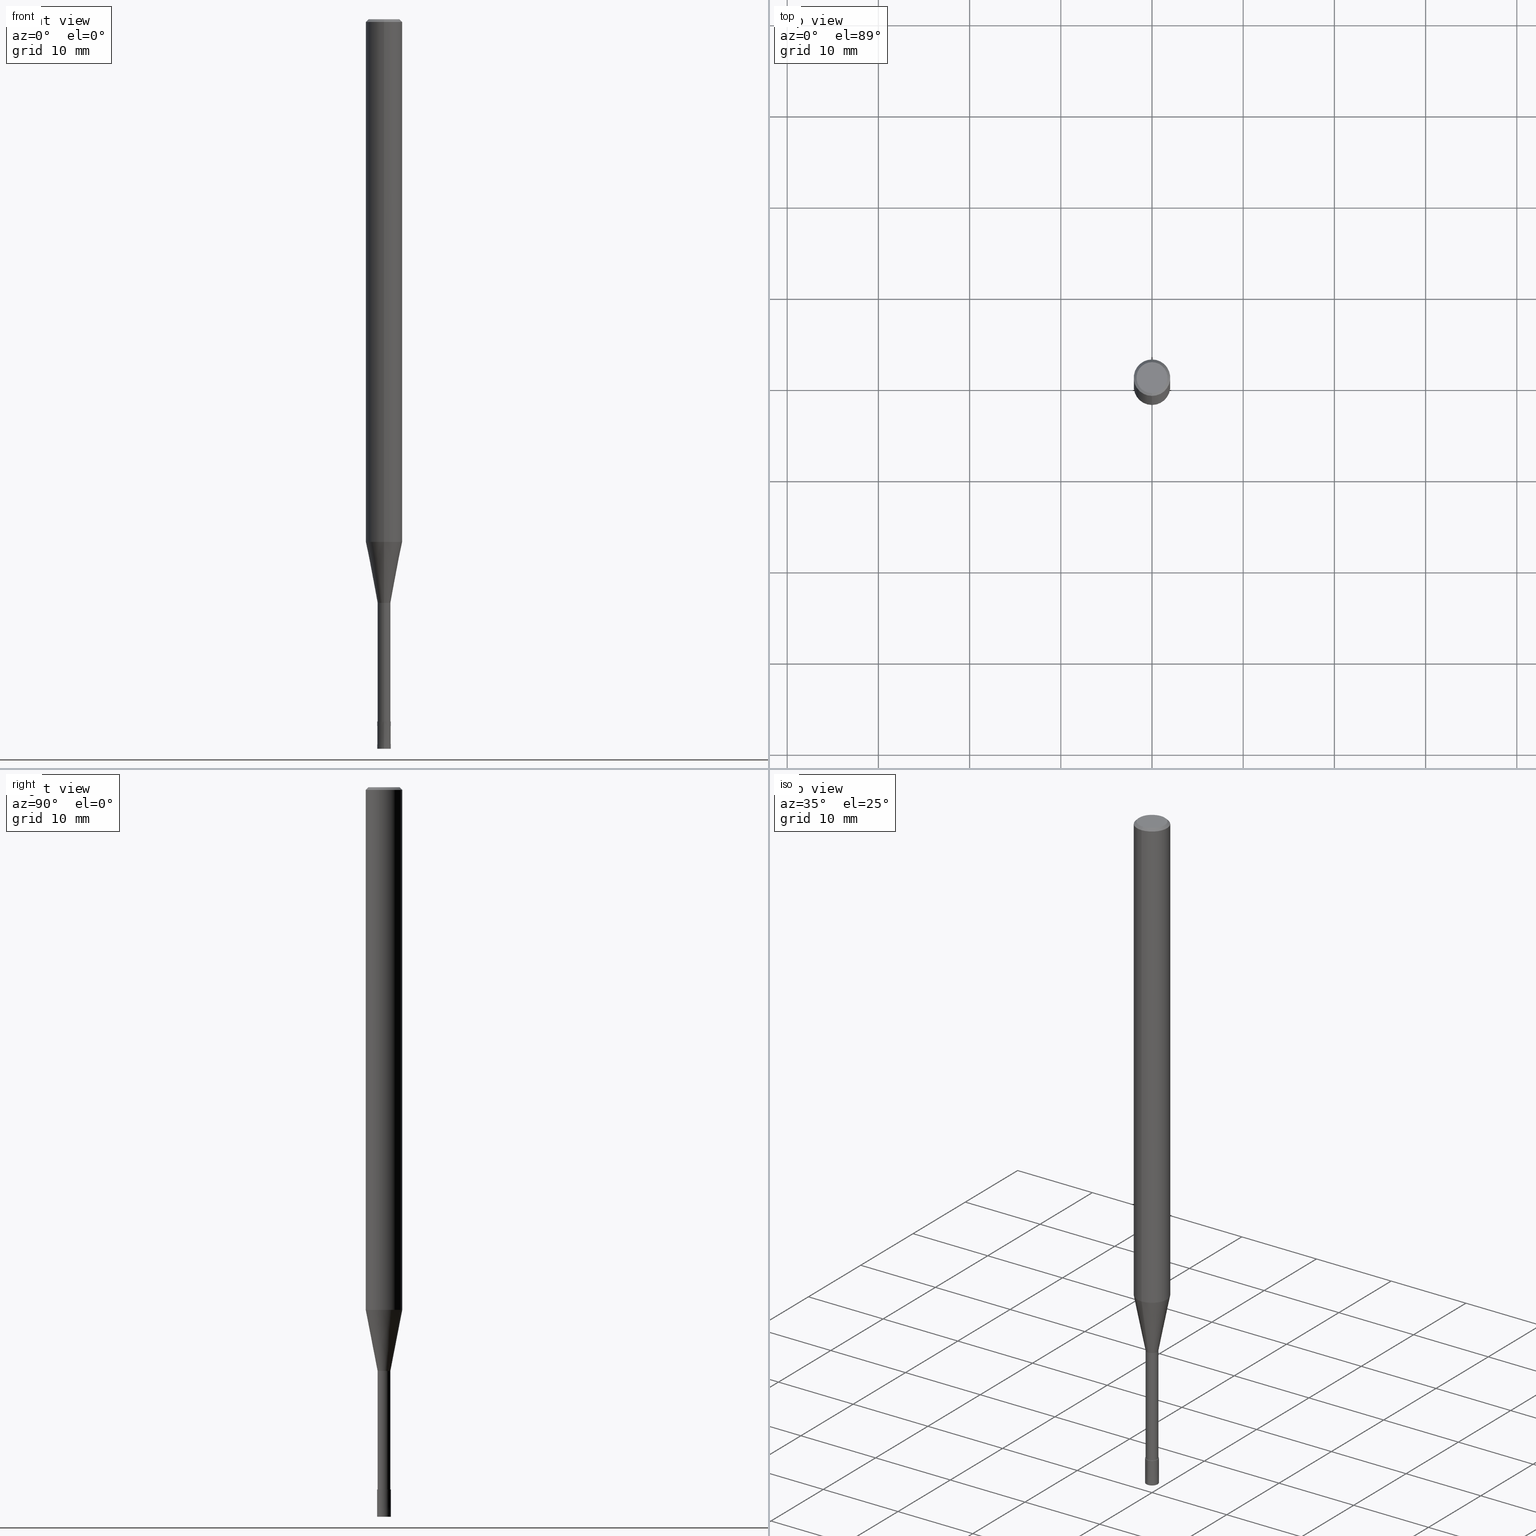
[diagram: canonical four-view strip — front | top / right | iso, engineering-drawing reading convention]
A machine part, canonical four-view strip (front | top / right | iso — engineering-drawing reading convention). The complete STEP part file that produces these views, byte-faithful:
ISO-10303-21;
HEADER;
FILE_DESCRIPTION(('no description'),'unknown implementation level');
FILE_NAME('CPRL2015-16-Huellk.stp','  ',('CIMSOURCE GmbH'),('CADClick - KiM GmbH - www.kimweb.de'),'unknown preprocess','ACIS','unknown authorization');
FILE_SCHEMA(('automotive_design'));
ENDSEC;
DATA;
#1=MECHANICAL_DESIGN_GEOMETRIC_PRESENTATION_REPRESENTATION(' ',(#14,#15,#16,#17,#18,#19,#20,#21,#22,#23,#24,#25,#26,#27,#28,#29,#30,#31,#32,#33,#34,#35,#36,#37,#38,#39,#40,#41,#42,#43,#44,#45,#46,#47,#48,#49,#50,#51,#52,#53,#54,#55,#56,#57,#58,#59,#60,#61,#62,#63,#64,#65,#66,#67,#68,#69,#70,#71,#72),#10);
#2=PRODUCT_DEFINITION_CONTEXT('',#73,'design');
#3=APPLICATION_PROTOCOL_DEFINITION('INTERNATIONAL STANDARD','automotive_design',1994,#73);
#4=PRODUCT_CATEGORY_RELATIONSHIP('NONE','NONE',#74,#75);
#5=SHAPE_DEFINITION_REPRESENTATION(#76,#77);
#6=PRODUCT_DEFINITION_CONTEXT('',#78,'design');
#7=APPLICATION_PROTOCOL_DEFINITION('INTERNATIONAL STANDARD','automotive_design',1994,#78);
#8=PRODUCT_CATEGORY_RELATIONSHIP('NONE','NONE',#79,#80);
#9=SHAPE_DEFINITION_REPRESENTATION(#81,#82);
#10= (GEOMETRIC_REPRESENTATION_CONTEXT(3)GLOBAL_UNCERTAINTY_ASSIGNED_CONTEXT((#85))GLOBAL_UNIT_ASSIGNED_CONTEXT((#87,#88,#89))REPRESENTATION_CONTEXT('NONE','WORKSPACE'));
#14=STYLED_ITEM('',(#91),#92);
#15=STYLED_ITEM('',(#93),#94);
#16=STYLED_ITEM('',(#95),#96);
#17=STYLED_ITEM('',(#97),#98);
#18=STYLED_ITEM('',(#99),#100);
#19=STYLED_ITEM('',(#101),#102);
#20=STYLED_ITEM('',(#103),#104);
#21=STYLED_ITEM('',(#105),#106);
#22=STYLED_ITEM('',(#107),#108);
#23=STYLED_ITEM('',(#109),#110);
#24=STYLED_ITEM('',(#111),#112);
#25=STYLED_ITEM('',(#113),#114);
#26=STYLED_ITEM('',(#115),#116);
#27=STYLED_ITEM('',(#117),#118);
#28=STYLED_ITEM('',(#119),#120);
#29=STYLED_ITEM('',(#121),#122);
#30=STYLED_ITEM('',(#123),#124);
#31=STYLED_ITEM('',(#125),#126);
#32=STYLED_ITEM('',(#127),#128);
#33=STYLED_ITEM('',(#129),#130);
#34=STYLED_ITEM('',(#131),#132);
#35=STYLED_ITEM('',(#133),#134);
#36=STYLED_ITEM('',(#135),#136);
#37=STYLED_ITEM('',(#137),#138);
#38=STYLED_ITEM('',(#139),#140);
#39=STYLED_ITEM('',(#141),#142);
#40=STYLED_ITEM('',(#143),#144);
#41=STYLED_ITEM('',(#145),#146);
#42=STYLED_ITEM('',(#147),#148);
#43=STYLED_ITEM('',(#149),#150);
#44=STYLED_ITEM('',(#151),#152);
#45=STYLED_ITEM('',(#153),#154);
#46=STYLED_ITEM('',(#155),#156);
#47=STYLED_ITEM('',(#157),#158);
#48=STYLED_ITEM('',(#159),#160);
#49=STYLED_ITEM('',(#161),#162);
#50=STYLED_ITEM('',(#163),#164);
#51=STYLED_ITEM('',(#165),#166);
#52=STYLED_ITEM('',(#167),#168);
#53=STYLED_ITEM('',(#169),#170);
#54=STYLED_ITEM('',(#171),#172);
#55=STYLED_ITEM('',(#173),#174);
#56=STYLED_ITEM('',(#175),#176);
#57=STYLED_ITEM('',(#177),#178);
#58=STYLED_ITEM('',(#179),#180);
#59=STYLED_ITEM('',(#181),#182);
#60=STYLED_ITEM('',(#183),#184);
#61=STYLED_ITEM('',(#185),#186);
#62=STYLED_ITEM('',(#187),#188);
#63=STYLED_ITEM('',(#189),#190);
#64=STYLED_ITEM('',(#191),#192);
#65=STYLED_ITEM('',(#193),#194);
#66=STYLED_ITEM('',(#195),#196);
#67=STYLED_ITEM('',(#197),#198);
#68=STYLED_ITEM('',(#199),#200);
#69=STYLED_ITEM('',(#201),#202);
#70=STYLED_ITEM('',(#203),#204);
#71=STYLED_ITEM('',(#205),#206);
#72=STYLED_ITEM('',(#207),#208);
#73=APPLICATION_CONTEXT(' ');
#74=PRODUCT_CATEGORY('part','NONE');
#75=PRODUCT_RELATED_PRODUCT_CATEGORY('detail',' ',(#209));
#76=PRODUCT_DEFINITION_SHAPE('NONE','NONE',#210);
#77=ADVANCED_BREP_SHAPE_REPRESENTATION('1',(#110,#211),#10);
#78=APPLICATION_CONTEXT(' ');
#79=PRODUCT_CATEGORY('part','NONE');
#80=PRODUCT_RELATED_PRODUCT_CATEGORY('detail',' ',(#212));
#81=PRODUCT_DEFINITION_SHAPE('NONE','NONE',#213);
#82=ADVANCED_BREP_SHAPE_REPRESENTATION('2',(#148,#214),#10);
#85=UNCERTAINTY_MEASURE_WITH_UNIT(LENGTH_MEASURE(1.0E-006),#87,'','');
#87= (CONVERSION_BASED_UNIT('MILLIMETRE',#217)LENGTH_UNIT()NAMED_UNIT(#220));
#88= (NAMED_UNIT(#222)PLANE_ANGLE_UNIT()SI_UNIT($,.RADIAN.));
#89= (NAMED_UNIT(#222)SOLID_ANGLE_UNIT()SI_UNIT($,.STERADIAN.));
#91=PRESENTATION_STYLE_ASSIGNMENT((#228));
#92=ADVANCED_FACE('',(#229),#230,.T.);
#93=PRESENTATION_STYLE_ASSIGNMENT((#231));
#94=ADVANCED_FACE('',(#232),#233,.T.);
#95=PRESENTATION_STYLE_ASSIGNMENT((#234));
#96=EDGE_CURVE('',#192,#126,#235,.T.);
#97=PRESENTATION_STYLE_ASSIGNMENT((#236));
#98=ADVANCED_FACE('',(#237,#238),#239,.T.);
#99=PRESENTATION_STYLE_ASSIGNMENT((#240));
#100=VERTEX_POINT('',#241);
#101=PRESENTATION_STYLE_ASSIGNMENT((#242));
#102=ADVANCED_FACE('',(#243),#244,.T.);
#103=PRESENTATION_STYLE_ASSIGNMENT((#245));
#104=VERTEX_POINT('',#246);
#105=PRESENTATION_STYLE_ASSIGNMENT((#247));
#106=EDGE_CURVE('',#188,#140,#248,.T.);
#107=PRESENTATION_STYLE_ASSIGNMENT((#249));
#108=ADVANCED_FACE('',(#250),#251,.T.);
#109=PRESENTATION_STYLE_ASSIGNMENT((#252));
#110=MANIFOLD_SOLID_BREP('1',#253);
#111=PRESENTATION_STYLE_ASSIGNMENT((#254));
#112=EDGE_CURVE('',#202,#164,#255,.T.);
#113=PRESENTATION_STYLE_ASSIGNMENT((#256));
#114=ADVANCED_FACE('',(#257),#258,.T.);
#115=PRESENTATION_STYLE_ASSIGNMENT((#259));
#116=EDGE_CURVE('',#118,#176,#260,.T.);
#117=PRESENTATION_STYLE_ASSIGNMENT((#261));
#118=VERTEX_POINT('',#262);
#119=PRESENTATION_STYLE_ASSIGNMENT((#263));
#120=EDGE_CURVE('',#140,#192,#264,.T.);
#121=PRESENTATION_STYLE_ASSIGNMENT((#265));
#122=EDGE_CURVE('',#166,#104,#266,.T.);
#123=PRESENTATION_STYLE_ASSIGNMENT((#267));
#124=EDGE_CURVE('',#126,#192,#268,.T.);
#125=PRESENTATION_STYLE_ASSIGNMENT((#269));
#126=VERTEX_POINT('',#270);
#127=PRESENTATION_STYLE_ASSIGNMENT((#271));
#128=EDGE_CURVE('',#164,#202,#272,.T.);
#129=PRESENTATION_STYLE_ASSIGNMENT((#273));
#130=ADVANCED_FACE('',(#274),#275,.T.);
#131=PRESENTATION_STYLE_ASSIGNMENT((#276));
#132=EDGE_CURVE('',#160,#198,#277,.T.);
#133=PRESENTATION_STYLE_ASSIGNMENT((#278));
#134=VERTEX_POINT('',#279);
#135=PRESENTATION_STYLE_ASSIGNMENT((#280));
#136=EDGE_CURVE('',#134,#186,#281,.T.);
#137=PRESENTATION_STYLE_ASSIGNMENT((#282));
#138=EDGE_CURVE('',#160,#118,#283,.T.);
#139=PRESENTATION_STYLE_ASSIGNMENT((#284));
#140=VERTEX_POINT('',#285);
#141=PRESENTATION_STYLE_ASSIGNMENT((#286));
#142=EDGE_CURVE('',#100,#164,#287,.T.);
#143=PRESENTATION_STYLE_ASSIGNMENT((#288));
#144=ADVANCED_FACE('',(#289),#290,.T.);
#145=PRESENTATION_STYLE_ASSIGNMENT((#291));
#146=VERTEX_POINT('',#292);
#147=PRESENTATION_STYLE_ASSIGNMENT((#293));
#148=MANIFOLD_SOLID_BREP('2',#294);
#149=PRESENTATION_STYLE_ASSIGNMENT((#295));
#150=ADVANCED_FACE('',(#296),#297,.T.);
#151=PRESENTATION_STYLE_ASSIGNMENT((#298));
#152=EDGE_CURVE('',#146,#100,#299,.T.);
#153=PRESENTATION_STYLE_ASSIGNMENT((#300));
#154=EDGE_CURVE('',#100,#146,#301,.T.);
#155=PRESENTATION_STYLE_ASSIGNMENT((#302));
#156=ADVANCED_FACE('',(#303),#304,.T.);
#157=PRESENTATION_STYLE_ASSIGNMENT((#305));
#158=EDGE_CURVE('',#186,#134,#306,.T.);
#159=PRESENTATION_STYLE_ASSIGNMENT((#307));
#160=VERTEX_POINT('',#308);
#161=PRESENTATION_STYLE_ASSIGNMENT((#309));
#162=EDGE_CURVE('',#104,#140,#310,.T.);
#163=PRESENTATION_STYLE_ASSIGNMENT((#311));
#164=VERTEX_POINT('',#312);
#165=PRESENTATION_STYLE_ASSIGNMENT((#313));
#166=VERTEX_POINT('',#314);
#167=PRESENTATION_STYLE_ASSIGNMENT((#315));
#168=EDGE_CURVE('',#176,#198,#316,.T.);
#169=PRESENTATION_STYLE_ASSIGNMENT((#317));
#170=EDGE_CURVE('',#140,#188,#318,.T.);
#171=PRESENTATION_STYLE_ASSIGNMENT((#319));
#172=EDGE_CURVE('',#186,#100,#320,.T.);
#173=PRESENTATION_STYLE_ASSIGNMENT((#321));
#174=EDGE_CURVE('',#104,#166,#322,.T.);
#175=PRESENTATION_STYLE_ASSIGNMENT((#323));
#176=VERTEX_POINT('',#324);
#177=PRESENTATION_STYLE_ASSIGNMENT((#325));
#178=ADVANCED_FACE('',(#326),#327,.T.);
#179=PRESENTATION_STYLE_ASSIGNMENT((#328));
#180=ADVANCED_FACE('',(#329),#330,.T.);
#181=PRESENTATION_STYLE_ASSIGNMENT((#331));
#182=EDGE_CURVE('',#146,#134,#332,.T.);
#183=PRESENTATION_STYLE_ASSIGNMENT((#333));
#184=EDGE_CURVE('',#188,#166,#334,.T.);
#185=PRESENTATION_STYLE_ASSIGNMENT((#335));
#186=VERTEX_POINT('',#336);
#187=PRESENTATION_STYLE_ASSIGNMENT((#337));
#188=VERTEX_POINT('',#338);
#189=PRESENTATION_STYLE_ASSIGNMENT((#339));
#190=ADVANCED_FACE('',(#340),#341,.T.);
#191=PRESENTATION_STYLE_ASSIGNMENT((#342));
#192=VERTEX_POINT('',#343);
#193=PRESENTATION_STYLE_ASSIGNMENT((#344));
#194=ADVANCED_FACE('',(#345),#346,.T.);
#195=PRESENTATION_STYLE_ASSIGNMENT((#347));
#196=EDGE_CURVE('',#126,#188,#348,.T.);
#197=PRESENTATION_STYLE_ASSIGNMENT((#349));
#198=VERTEX_POINT('',#350);
#199=PRESENTATION_STYLE_ASSIGNMENT((#351));
#200=ADVANCED_FACE('',(#352),#353,.T.);
#201=PRESENTATION_STYLE_ASSIGNMENT((#354));
#202=VERTEX_POINT('',#355);
#203=PRESENTATION_STYLE_ASSIGNMENT((#356));
#204=EDGE_CURVE('',#198,#160,#357,.T.);
#205=PRESENTATION_STYLE_ASSIGNMENT((#358));
#206=EDGE_CURVE('',#176,#118,#359,.T.);
#207=PRESENTATION_STYLE_ASSIGNMENT((#360));
#208=EDGE_CURVE('',#202,#146,#361,.T.);
#209=PRODUCT('1','1','PART-1-DESC',(#362));
#210=PRODUCT_DEFINITION('NONE','NONE',#363,#2);
#211=AXIS2_PLACEMENT_3D('',#364,#365,#366);
#212=PRODUCT('2','2','PART-2-DESC',(#367));
#213=PRODUCT_DEFINITION('NONE','NONE',#368,#6);
#214=AXIS2_PLACEMENT_3D('',#369,#370,#371);
#217=LENGTH_MEASURE_WITH_UNIT(LENGTH_MEASURE(1.0),#372);
#220=DIMENSIONAL_EXPONENTS(1.0,0.0,0.0,0.0,0.0,0.0,0.0);
#222=DIMENSIONAL_EXPONENTS(0.0,0.0,0.0,0.0,0.0,0.0,0.0);
#228=SURFACE_STYLE_USAGE(.BOTH.,#373);
#229=FACE_OUTER_BOUND('',#374,.T.);
#230=PLANE('',#375);
#231=SURFACE_STYLE_USAGE(.BOTH.,#376);
#232=FACE_OUTER_BOUND('',#377,.T.);
#233=CONICAL_SURFACE('',#378,1.34995,0.191983983430966);
#234=CURVE_STYLE('',#379,POSITIVE_LENGTH_MEASURE(1.0E-006),#380);
#235=CIRCLE('',#381,1.99995);
#236=SURFACE_STYLE_USAGE(.BOTH.,#382);
#237=FACE_OUTER_BOUND('',#383,.T.);
#238=FACE_BOUND('',#384,.T.);
#239=PLANE('',#385);
#240=POINT_STYLE(' ',#386,POSITIVE_LENGTH_MEASURE(1.0E-006),#387);
#241=CARTESIAN_POINT('',(2.44921270764475E-016,-2.0,-0.299999999999997));
#242=SURFACE_STYLE_USAGE(.BOTH.,#388);
#243=FACE_OUTER_BOUND('',#389,.T.);
#244=PLANE('',#390);
#245=POINT_STYLE(' ',#391,POSITIVE_LENGTH_MEASURE(1.0E-006),#392);
#246=CARTESIAN_POINT('',(8.57163217357973E-017,-0.69995,-77.0));
#247=CURVE_STYLE('',#393,POSITIVE_LENGTH_MEASURE(1.0E-006),#394);
#248=CIRCLE('',#395,0.69995);
#249=SURFACE_STYLE_USAGE(.BOTH.,#396);
#250=FACE_OUTER_BOUND('',#397,.T.);
#251=PLANE('',#398);
#252=SURFACE_STYLE_USAGE(.BOTH.,#399);
#253=CLOSED_SHELL('',(#190,#94,#156,#150,#98,#108,#200,#178,#144,#114,#92));
#254=CURVE_STYLE('',#400,POSITIVE_LENGTH_MEASURE(1.0E-006),#401);
#255=CIRCLE('',#402,1.7);
#256=SURFACE_STYLE_USAGE(.BOTH.,#403);
#257=FACE_OUTER_BOUND('',#404,.T.);
#258=CYLINDRICAL_SURFACE('',#405,0.69995);
#259=CURVE_STYLE('',#406,POSITIVE_LENGTH_MEASURE(1.0E-006),#407);
#260=CIRCLE('',#408,0.75);
#261=POINT_STYLE(' ',#409,POSITIVE_LENGTH_MEASURE(1.0E-006),#410);
#262=CARTESIAN_POINT('',(0.0,0.75,-80.0));
#263=CURVE_STYLE('',#411,POSITIVE_LENGTH_MEASURE(1.0E-006),#412);
#264=LINE('',#413,#414);
#265=CURVE_STYLE('',#415,POSITIVE_LENGTH_MEASURE(1.0E-006),#416);
#266=CIRCLE('',#417,0.69995);
#267=CURVE_STYLE('',#418,POSITIVE_LENGTH_MEASURE(1.0E-006),#419);
#268=CIRCLE('',#420,1.99995);
#269=POINT_STYLE(' ',#421,POSITIVE_LENGTH_MEASURE(1.0E-006),#422);
#270=CARTESIAN_POINT('',(0.0,1.99995,-57.312));
#271=CURVE_STYLE('',#423,POSITIVE_LENGTH_MEASURE(1.0E-006),#424);
#272=CIRCLE('',#425,1.7);
#273=SURFACE_STYLE_USAGE(.BOTH.,#426);
#274=FACE_OUTER_BOUND('',#427,.T.);
#275=CONICAL_SURFACE('',#428,0.74995,3.3333333320984E-005);
#276=CURVE_STYLE('',#429,POSITIVE_LENGTH_MEASURE(1.0E-006),#430);
#277=CIRCLE('',#431,0.7499);
#278=POINT_STYLE(' ',#432,POSITIVE_LENGTH_MEASURE(1.0E-006),#433);
#279=CARTESIAN_POINT('',(0.0,2.0,-57.312));
#280=CURVE_STYLE('',#434,POSITIVE_LENGTH_MEASURE(1.0E-006),#435);
#281=CIRCLE('',#436,2.0);
#282=CURVE_STYLE('',#437,POSITIVE_LENGTH_MEASURE(1.0E-006),#438);
#283=LINE('',#439,#440);
#284=POINT_STYLE(' ',#441,POSITIVE_LENGTH_MEASURE(1.0E-006),#442);
#285=CARTESIAN_POINT('',(8.57163217357973E-017,-0.69995,-64.0));
#286=CURVE_STYLE('',#443,POSITIVE_LENGTH_MEASURE(1.0E-006),#444);
#287=LINE('',#445,#446);
#288=SURFACE_STYLE_USAGE(.BOTH.,#447);
#289=FACE_OUTER_BOUND('',#448,.T.);
#290=CONICAL_SURFACE('',#449,1.34995,0.191983983430966);
#291=POINT_STYLE(' ',#450,POSITIVE_LENGTH_MEASURE(1.0E-006),#451);
#292=CARTESIAN_POINT('',(0.0,2.0,-0.299999999999997));
#293=SURFACE_STYLE_USAGE(.BOTH.,#452);
#294=CLOSED_SHELL('',(#130,#102,#180,#194));
#295=SURFACE_STYLE_USAGE(.BOTH.,#453);
#296=FACE_OUTER_BOUND('',#454,.T.);
#297=CONICAL_SURFACE('',#455,1.85,0.785398163397453);
#298=CURVE_STYLE('',#456,POSITIVE_LENGTH_MEASURE(1.0E-006),#457);
#299=CIRCLE('',#458,2.0);
#300=CURVE_STYLE('',#459,POSITIVE_LENGTH_MEASURE(1.0E-006),#460);
#301=CIRCLE('',#461,2.0);
#302=SURFACE_STYLE_USAGE(.BOTH.,#462);
#303=FACE_OUTER_BOUND('',#463,.T.);
#304=CYLINDRICAL_SURFACE('',#464,2.0);
#305=CURVE_STYLE('',#465,POSITIVE_LENGTH_MEASURE(1.0E-006),#466);
#306=CIRCLE('',#467,2.0);
#307=POINT_STYLE(' ',#468,POSITIVE_LENGTH_MEASURE(1.0E-006),#469);
#308=CARTESIAN_POINT('',(0.0,0.7499,-77.0));
#309=CURVE_STYLE('',#470,POSITIVE_LENGTH_MEASURE(1.0E-006),#471);
#310=LINE('',#472,#473);
#311=POINT_STYLE(' ',#474,POSITIVE_LENGTH_MEASURE(1.0E-006),#475);
#312=CARTESIAN_POINT('',(2.08183080149804E-016,-1.7,0.0));
#313=POINT_STYLE(' ',#476,POSITIVE_LENGTH_MEASURE(1.0E-006),#477);
#314=CARTESIAN_POINT('',(0.0,0.69995,-77.0));
#315=CURVE_STYLE('',#478,POSITIVE_LENGTH_MEASURE(1.0E-006),#479);
#316=LINE('',#480,#481);
#317=CURVE_STYLE('',#482,POSITIVE_LENGTH_MEASURE(1.0E-006),#483);
#318=CIRCLE('',#484,0.69995);
#319=CURVE_STYLE('',#485,POSITIVE_LENGTH_MEASURE(1.0E-006),#486);
#320=LINE('',#487,#488);
#321=CURVE_STYLE('',#489,POSITIVE_LENGTH_MEASURE(1.0E-006),#490);
#322=CIRCLE('',#491,0.69995);
#323=POINT_STYLE(' ',#492,POSITIVE_LENGTH_MEASURE(1.0E-006),#493);
#324=CARTESIAN_POINT('',(9.18454765366783E-017,-0.75,-80.0));
#325=SURFACE_STYLE_USAGE(.BOTH.,#494);
#326=FACE_OUTER_BOUND('',#495,.T.);
#327=CYLINDRICAL_SURFACE('',#496,2.0);
#328=SURFACE_STYLE_USAGE(.BOTH.,#497);
#329=FACE_OUTER_BOUND('',#498,.T.);
#330=CONICAL_SURFACE('',#499,0.74995,3.3333333320984E-005);
#331=CURVE_STYLE('',#500,POSITIVE_LENGTH_MEASURE(1.0E-006),#501);
#332=LINE('',#502,#503);
#333=CURVE_STYLE('',#504,POSITIVE_LENGTH_MEASURE(1.0E-006),#505);
#334=LINE('',#506,#507);
#335=POINT_STYLE(' ',#508,POSITIVE_LENGTH_MEASURE(1.0E-006),#509);
#336=CARTESIAN_POINT('',(2.44921270764475E-016,-2.0,-57.312));
#337=POINT_STYLE(' ',#510,POSITIVE_LENGTH_MEASURE(1.0E-006),#511);
#338=CARTESIAN_POINT('',(0.0,0.69995,-64.0));
#339=SURFACE_STYLE_USAGE(.BOTH.,#512);
#340=FACE_OUTER_BOUND('',#513,.T.);
#341=CYLINDRICAL_SURFACE('',#514,0.69995);
#342=POINT_STYLE(' ',#515,POSITIVE_LENGTH_MEASURE(1.0E-006),#516);
#343=CARTESIAN_POINT('',(2.44915147732706E-016,-1.99995,-57.312));
#344=SURFACE_STYLE_USAGE(.BOTH.,#517);
#345=FACE_OUTER_BOUND('',#518,.T.);
#346=PLANE('',#519);
#347=CURVE_STYLE('',#520,POSITIVE_LENGTH_MEASURE(1.0E-006),#521);
#348=LINE('',#522,#523);
#349=POINT_STYLE(' ',#524,POSITIVE_LENGTH_MEASURE(1.0E-006),#525);
#350=CARTESIAN_POINT('',(9.18332304731401E-017,-0.7499,-77.0));
#351=SURFACE_STYLE_USAGE(.BOTH.,#526);
#352=FACE_OUTER_BOUND('',#527,.T.);
#353=CONICAL_SURFACE('',#528,1.85,0.785398163397453);
#354=POINT_STYLE(' ',#529,POSITIVE_LENGTH_MEASURE(1.0E-006),#530);
#355=CARTESIAN_POINT('',(0.0,1.7,0.0));
#356=CURVE_STYLE('',#531,POSITIVE_LENGTH_MEASURE(1.0E-006),#532);
#357=CIRCLE('',#533,0.7499);
#358=CURVE_STYLE('',#534,POSITIVE_LENGTH_MEASURE(1.0E-006),#535);
#359=CIRCLE('',#536,0.75);
#360=CURVE_STYLE('',#537,POSITIVE_LENGTH_MEASURE(1.0E-006),#538);
#361=LINE('',#539,#540);
#362=PRODUCT_CONTEXT('',#73,'mechanical');
#363=PRODUCT_DEFINITION_FORMATION_WITH_SPECIFIED_SOURCE(' ','NONE',#209,.NOT_KNOWN.);
#364=CARTESIAN_POINT('',(0.0,0.0,0.0));
#365=DIRECTION('',(0.0,0.0,1.0));
#366=DIRECTION('',(1.0,0.0,0.0));
#367=PRODUCT_CONTEXT('',#78,'mechanical');
#368=PRODUCT_DEFINITION_FORMATION_WITH_SPECIFIED_SOURCE(' ','NONE',#212,.NOT_KNOWN.);
#369=CARTESIAN_POINT('',(0.0,0.0,0.0));
#370=DIRECTION('',(0.0,0.0,1.0));
#371=DIRECTION('',(1.0,0.0,0.0));
#372= (NAMED_UNIT(#220)LENGTH_UNIT()SI_UNIT(.MILLI.,.METRE.));
#373=SURFACE_SIDE_STYLE('',(#542));
#374=EDGE_LOOP('',(#543,#544));
#375=AXIS2_PLACEMENT_3D('',#545,#546,#547);
#376=SURFACE_SIDE_STYLE('',(#548));
#377=EDGE_LOOP('',(#549,#550,#551,#552));
#378=AXIS2_PLACEMENT_3D('',#553,#554,#555);
#379=DRAUGHTING_PRE_DEFINED_CURVE_FONT('continuous');
#380=COLOUR_RGB('',0.498039215803146,0.498039215803146,0.498039215803146);
#381=AXIS2_PLACEMENT_3D('',#556,#557,#558);
#382=SURFACE_SIDE_STYLE('',(#559));
#383=EDGE_LOOP('',(#560,#561));
#384=EDGE_LOOP('',(#562,#563));
#385=AXIS2_PLACEMENT_3D('',#564,#565,#566);
#386=PRE_DEFINED_MARKER('');
#387=COLOUR_RGB('',0.498039215803146,0.498039215803146,0.498039215803146);
#388=SURFACE_SIDE_STYLE('',(#567));
#389=EDGE_LOOP('',(#568,#569));
#390=AXIS2_PLACEMENT_3D('',#570,#571,#572);
#391=PRE_DEFINED_MARKER('');
#392=COLOUR_RGB('',0.498039215803146,0.498039215803146,0.498039215803146);
#393=DRAUGHTING_PRE_DEFINED_CURVE_FONT('continuous');
#394=COLOUR_RGB('',0.498039215803146,0.498039215803146,0.498039215803146);
#395=AXIS2_PLACEMENT_3D('',#573,#574,#575);
#396=SURFACE_SIDE_STYLE('',(#576));
#397=EDGE_LOOP('',(#577,#578));
#398=AXIS2_PLACEMENT_3D('',#579,#580,#581);
#399=SURFACE_SIDE_STYLE('',(#582));
#400=DRAUGHTING_PRE_DEFINED_CURVE_FONT('continuous');
#401=COLOUR_RGB('',0.498039215803146,0.498039215803146,0.498039215803146);
#402=AXIS2_PLACEMENT_3D('',#583,#584,#585);
#403=SURFACE_SIDE_STYLE('',(#586));
#404=EDGE_LOOP('',(#587,#588,#589,#590));
#405=AXIS2_PLACEMENT_3D('',#591,#592,#593);
#406=DRAUGHTING_PRE_DEFINED_CURVE_FONT('continuous');
#407=COLOUR_RGB('',0.800000011920929,0.800000011920929,0.800000011920929);
#408=AXIS2_PLACEMENT_3D('',#594,#595,#596);
#409=PRE_DEFINED_MARKER('');
#410=COLOUR_RGB('',0.800000011920929,0.800000011920929,0.800000011920929);
#411=DRAUGHTING_PRE_DEFINED_CURVE_FONT('continuous');
#412=COLOUR_RGB('',0.498039215803146,0.498039215803146,0.498039215803146);
#413=CARTESIAN_POINT('',(1.65315734734252E-016,-1.34995,-60.656));
#414=VECTOR('',#597,1.0);
#415=DRAUGHTING_PRE_DEFINED_CURVE_FONT('continuous');
#416=COLOUR_RGB('',0.498039215803146,0.498039215803146,0.498039215803146);
#417=AXIS2_PLACEMENT_3D('',#598,#599,#600);
#418=DRAUGHTING_PRE_DEFINED_CURVE_FONT('continuous');
#419=COLOUR_RGB('',0.498039215803146,0.498039215803146,0.498039215803146);
#420=AXIS2_PLACEMENT_3D('',#601,#602,#603);
#421=PRE_DEFINED_MARKER('');
#422=COLOUR_RGB('',0.498039215803146,0.498039215803146,0.498039215803146);
#423=DRAUGHTING_PRE_DEFINED_CURVE_FONT('continuous');
#424=COLOUR_RGB('',0.498039215803146,0.498039215803146,0.498039215803146);
#425=AXIS2_PLACEMENT_3D('',#604,#605,#606);
#426=SURFACE_SIDE_STYLE('',(#607));
#427=EDGE_LOOP('',(#608,#609,#610,#611));
#428=AXIS2_PLACEMENT_3D('',#612,#613,#614);
#429=DRAUGHTING_PRE_DEFINED_CURVE_FONT('continuous');
#430=COLOUR_RGB('',0.800000011920929,0.800000011920929,0.800000011920929);
#431=AXIS2_PLACEMENT_3D('',#615,#616,#617);
#432=PRE_DEFINED_MARKER('');
#433=COLOUR_RGB('',0.498039215803146,0.498039215803146,0.498039215803146);
#434=DRAUGHTING_PRE_DEFINED_CURVE_FONT('continuous');
#435=COLOUR_RGB('',0.498039215803146,0.498039215803146,0.498039215803146);
#436=AXIS2_PLACEMENT_3D('',#618,#619,#620);
#437=DRAUGHTING_PRE_DEFINED_CURVE_FONT('continuous');
#438=COLOUR_RGB('',0.800000011920929,0.800000011920929,0.800000011920929);
#439=CARTESIAN_POINT('',(-9.18393535049092E-017,0.74995,-78.5));
#440=VECTOR('',#621,1.0);
#441=PRE_DEFINED_MARKER('');
#442=COLOUR_RGB('',0.498039215803146,0.498039215803146,0.498039215803146);
#443=DRAUGHTING_PRE_DEFINED_CURVE_FONT('continuous');
#444=COLOUR_RGB('',0.498039215803146,0.498039215803146,0.498039215803146);
#445=CARTESIAN_POINT('',(2.2655217545714E-016,-1.85,-0.149999999999999));
#446=VECTOR('',#622,1.0);
#447=SURFACE_SIDE_STYLE('',(#623));
#448=EDGE_LOOP('',(#624,#625,#626,#627));
#449=AXIS2_PLACEMENT_3D('',#628,#629,#630);
#450=PRE_DEFINED_MARKER('');
#451=COLOUR_RGB('',0.498039215803146,0.498039215803146,0.498039215803146);
#452=SURFACE_SIDE_STYLE('',(#631));
#453=SURFACE_SIDE_STYLE('',(#632));
#454=EDGE_LOOP('',(#633,#634,#635,#636));
#455=AXIS2_PLACEMENT_3D('',#637,#638,#639);
#456=DRAUGHTING_PRE_DEFINED_CURVE_FONT('continuous');
#457=COLOUR_RGB('',0.498039215803146,0.498039215803146,0.498039215803146);
#458=AXIS2_PLACEMENT_3D('',#640,#641,#642);
#459=DRAUGHTING_PRE_DEFINED_CURVE_FONT('continuous');
#460=COLOUR_RGB('',0.498039215803146,0.498039215803146,0.498039215803146);
#461=AXIS2_PLACEMENT_3D('',#643,#644,#645);
#462=SURFACE_SIDE_STYLE('',(#646));
#463=EDGE_LOOP('',(#647,#648,#649,#650));
#464=AXIS2_PLACEMENT_3D('',#651,#652,#653);
#465=DRAUGHTING_PRE_DEFINED_CURVE_FONT('continuous');
#466=COLOUR_RGB('',0.498039215803146,0.498039215803146,0.498039215803146);
#467=AXIS2_PLACEMENT_3D('',#654,#655,#656);
#468=PRE_DEFINED_MARKER('');
#469=COLOUR_RGB('',0.800000011920929,0.800000011920929,0.800000011920929);
#470=DRAUGHTING_PRE_DEFINED_CURVE_FONT('continuous');
#471=COLOUR_RGB('',0.498039215803146,0.498039215803146,0.498039215803146);
#472=CARTESIAN_POINT('',(8.57163217357973E-017,-0.69995,-70.5));
#473=VECTOR('',#657,1.0);
#474=PRE_DEFINED_MARKER('');
#475=COLOUR_RGB('',0.498039215803146,0.498039215803146,0.498039215803146);
#476=PRE_DEFINED_MARKER('');
#477=COLOUR_RGB('',0.498039215803146,0.498039215803146,0.498039215803146);
#478=DRAUGHTING_PRE_DEFINED_CURVE_FONT('continuous');
#479=COLOUR_RGB('',0.800000011920929,0.800000011920929,0.800000011920929);
#480=CARTESIAN_POINT('',(9.18393535049092E-017,-0.74995,-78.5));
#481=VECTOR('',#658,1.0);
#482=DRAUGHTING_PRE_DEFINED_CURVE_FONT('continuous');
#483=COLOUR_RGB('',0.498039215803146,0.498039215803146,0.498039215803146);
#484=AXIS2_PLACEMENT_3D('',#659,#660,#661);
#485=DRAUGHTING_PRE_DEFINED_CURVE_FONT('continuous');
#486=COLOUR_RGB('',0.498039215803146,0.498039215803146,0.498039215803146);
#487=CARTESIAN_POINT('',(2.44921270764475E-016,-2.0,-28.806));
#488=VECTOR('',#662,1.0);
#489=DRAUGHTING_PRE_DEFINED_CURVE_FONT('continuous');
#490=COLOUR_RGB('',0.498039215803146,0.498039215803146,0.498039215803146);
#491=AXIS2_PLACEMENT_3D('',#663,#664,#665);
#492=PRE_DEFINED_MARKER('');
#493=COLOUR_RGB('',0.800000011920929,0.800000011920929,0.800000011920929);
#494=SURFACE_SIDE_STYLE('',(#666));
#495=EDGE_LOOP('',(#667,#668,#669,#670));
#496=AXIS2_PLACEMENT_3D('',#671,#672,#673);
#497=SURFACE_SIDE_STYLE('',(#674));
#498=EDGE_LOOP('',(#675,#676,#677,#678));
#499=AXIS2_PLACEMENT_3D('',#679,#680,#681);
#500=DRAUGHTING_PRE_DEFINED_CURVE_FONT('continuous');
#501=COLOUR_RGB('',0.498039215803146,0.498039215803146,0.498039215803146);
#502=CARTESIAN_POINT('',(-2.44921270764475E-016,2.0,-28.806));
#503=VECTOR('',#682,1.0);
#504=DRAUGHTING_PRE_DEFINED_CURVE_FONT('continuous');
#505=COLOUR_RGB('',0.498039215803146,0.498039215803146,0.498039215803146);
#506=CARTESIAN_POINT('',(-8.57163217357973E-017,0.69995,-70.5));
#507=VECTOR('',#683,1.0);
#508=PRE_DEFINED_MARKER('');
#509=COLOUR_RGB('',0.498039215803146,0.498039215803146,0.498039215803146);
#510=PRE_DEFINED_MARKER('');
#511=COLOUR_RGB('',0.498039215803146,0.498039215803146,0.498039215803146);
#512=SURFACE_SIDE_STYLE('',(#684));
#513=EDGE_LOOP('',(#685,#686,#687,#688));
#514=AXIS2_PLACEMENT_3D('',#689,#690,#691);
#515=PRE_DEFINED_MARKER('');
#516=COLOUR_RGB('',0.498039215803146,0.498039215803146,0.498039215803146);
#517=SURFACE_SIDE_STYLE('',(#692));
#518=EDGE_LOOP('',(#693,#694));
#519=AXIS2_PLACEMENT_3D('',#695,#696,#697);
#520=DRAUGHTING_PRE_DEFINED_CURVE_FONT('continuous');
#521=COLOUR_RGB('',0.498039215803146,0.498039215803146,0.498039215803146);
#522=CARTESIAN_POINT('',(-1.65315734734252E-016,1.34995,-60.656));
#523=VECTOR('',#698,1.0);
#524=PRE_DEFINED_MARKER('');
#525=COLOUR_RGB('',0.800000011920929,0.800000011920929,0.800000011920929);
#526=SURFACE_SIDE_STYLE('',(#699));
#527=EDGE_LOOP('',(#700,#701,#702,#703));
#528=AXIS2_PLACEMENT_3D('',#704,#705,#706);
#529=PRE_DEFINED_MARKER('');
#530=COLOUR_RGB('',0.498039215803146,0.498039215803146,0.498039215803146);
#531=DRAUGHTING_PRE_DEFINED_CURVE_FONT('continuous');
#532=COLOUR_RGB('',0.800000011920929,0.800000011920929,0.800000011920929);
#533=AXIS2_PLACEMENT_3D('',#707,#708,#709);
#534=DRAUGHTING_PRE_DEFINED_CURVE_FONT('continuous');
#535=COLOUR_RGB('',0.800000011920929,0.800000011920929,0.800000011920929);
#536=AXIS2_PLACEMENT_3D('',#710,#711,#712);
#537=DRAUGHTING_PRE_DEFINED_CURVE_FONT('continuous');
#538=COLOUR_RGB('',0.498039215803146,0.498039215803146,0.498039215803146);
#539=CARTESIAN_POINT('',(-2.2655217545714E-016,1.85,-0.149999999999999));
#540=VECTOR('',#713,1.0);
#542=SURFACE_STYLE_FILL_AREA(#714);
#543=ORIENTED_EDGE('',*,*,#122,.T.);
#544=ORIENTED_EDGE('',*,*,#174,.T.);
#545=CARTESIAN_POINT('',(0.0,0.349975,-77.0));
#546=DIRECTION('',(0.0,0.0,-1.0));
#547=DIRECTION('',(0.0,1.0,0.0));
#548=SURFACE_STYLE_FILL_AREA(#715);
#549=ORIENTED_EDGE('',*,*,#196,.F.);
#550=ORIENTED_EDGE('',*,*,#124,.T.);
#551=ORIENTED_EDGE('',*,*,#120,.F.);
#552=ORIENTED_EDGE('',*,*,#106,.F.);
#553=CARTESIAN_POINT('',(0.0,0.0,-60.656));
#554=DIRECTION('',(-0.0,-0.0,1.0));
#555=DIRECTION('',(0.0,1.0,0.0));
#556=CARTESIAN_POINT('',(0.0,0.0,-57.312));
#557=DIRECTION('',(0.0,0.0,-1.0));
#558=DIRECTION('',(0.0,1.0,0.0));
#559=SURFACE_STYLE_FILL_AREA(#716);
#560=ORIENTED_EDGE('',*,*,#136,.T.);
#561=ORIENTED_EDGE('',*,*,#158,.T.);
#562=ORIENTED_EDGE('',*,*,#124,.F.);
#563=ORIENTED_EDGE('',*,*,#96,.F.);
#564=CARTESIAN_POINT('',(0.0,1.0,-57.312));
#565=DIRECTION('',(0.0,0.0,-1.0));
#566=DIRECTION('',(0.0,1.0,0.0));
#567=SURFACE_STYLE_FILL_AREA(#717);
#568=ORIENTED_EDGE('',*,*,#132,.F.);
#569=ORIENTED_EDGE('',*,*,#204,.F.);
#570=CARTESIAN_POINT('',(0.0,0.37495,-77.0));
#571=DIRECTION('',(-0.0,0.0,1.0));
#572=DIRECTION('',(0.0,-1.0,0.0));
#573=CARTESIAN_POINT('',(0.0,0.0,-64.0));
#574=DIRECTION('',(0.0,0.0,-1.0));
#575=DIRECTION('',(0.0,1.0,0.0));
#576=SURFACE_STYLE_FILL_AREA(#718);
#577=ORIENTED_EDGE('',*,*,#112,.F.);
#578=ORIENTED_EDGE('',*,*,#128,.F.);
#579=CARTESIAN_POINT('',(0.0,0.85,0.0));
#580=DIRECTION('',(-0.0,0.0,1.0));
#581=DIRECTION('',(0.0,-1.0,0.0));
#582=SURFACE_STYLE_FILL_AREA(#719);
#583=CARTESIAN_POINT('',(0.0,0.0,0.0));
#584=DIRECTION('',(0.0,0.0,-1.0));
#585=DIRECTION('',(0.0,1.0,0.0));
#586=SURFACE_STYLE_FILL_AREA(#720);
#587=ORIENTED_EDGE('',*,*,#184,.T.);
#588=ORIENTED_EDGE('',*,*,#174,.F.);
#589=ORIENTED_EDGE('',*,*,#162,.T.);
#590=ORIENTED_EDGE('',*,*,#170,.T.);
#591=CARTESIAN_POINT('',(0.0,0.0,-70.5));
#592=DIRECTION('',(-0.0,-0.0,1.0));
#593=DIRECTION('',(0.0,1.0,0.0));
#594=CARTESIAN_POINT('',(0.0,0.0,-80.0));
#595=DIRECTION('',(0.0,0.0,-1.0));
#596=DIRECTION('',(0.0,1.0,0.0));
#597=DIRECTION('',(2.33663222250515E-017,-0.190806802137829,0.981627609767541));
#598=CARTESIAN_POINT('',(0.0,0.0,-77.0));
#599=DIRECTION('',(0.0,0.0,-1.0));
#600=DIRECTION('',(0.0,1.0,0.0));
#601=CARTESIAN_POINT('',(0.0,0.0,-57.312));
#602=DIRECTION('',(0.0,0.0,-1.0));
#603=DIRECTION('',(0.0,1.0,0.0));
#604=CARTESIAN_POINT('',(0.0,0.0,0.0));
#605=DIRECTION('',(0.0,0.0,-1.0));
#606=DIRECTION('',(0.0,1.0,0.0));
#607=SURFACE_STYLE_FILL_AREA(#721);
#608=ORIENTED_EDGE('',*,*,#138,.F.);
#609=ORIENTED_EDGE('',*,*,#132,.T.);
#610=ORIENTED_EDGE('',*,*,#168,.F.);
#611=ORIENTED_EDGE('',*,*,#116,.F.);
#612=CARTESIAN_POINT('',(0.0,0.0,-78.5));
#613=DIRECTION('',(0.0,-0.0,-1.0));
#614=DIRECTION('',(0.0,1.0,0.0));
#615=CARTESIAN_POINT('',(0.0,0.0,-77.0));
#616=DIRECTION('',(0.0,0.0,-1.0));
#617=DIRECTION('',(0.0,1.0,0.0));
#618=CARTESIAN_POINT('',(0.0,0.0,-57.312));
#619=DIRECTION('',(0.0,0.0,-1.0));
#620=DIRECTION('',(0.0,1.0,0.0));
#621=DIRECTION('',(-4.08202117713969E-021,3.33333333148111E-005,-0.999999999444445));
#622=DIRECTION('',(-8.6592745707194E-017,0.707106781186551,0.707106781186544));
#623=SURFACE_STYLE_FILL_AREA(#722);
#624=ORIENTED_EDGE('',*,*,#196,.T.);
#625=ORIENTED_EDGE('',*,*,#170,.F.);
#626=ORIENTED_EDGE('',*,*,#120,.T.);
#627=ORIENTED_EDGE('',*,*,#96,.T.);
#628=CARTESIAN_POINT('',(0.0,0.0,-60.656));
#629=DIRECTION('',(-0.0,-0.0,1.0));
#630=DIRECTION('',(0.0,1.0,0.0));
#631=SURFACE_STYLE_FILL_AREA(#723);
#632=SURFACE_STYLE_FILL_AREA(#724);
#633=ORIENTED_EDGE('',*,*,#208,.F.);
#634=ORIENTED_EDGE('',*,*,#112,.T.);
#635=ORIENTED_EDGE('',*,*,#142,.F.);
#636=ORIENTED_EDGE('',*,*,#152,.F.);
#637=CARTESIAN_POINT('',(0.0,0.0,-0.149999999999999));
#638=DIRECTION('',(0.0,-0.0,-1.0));
#639=DIRECTION('',(0.0,1.0,0.0));
#640=CARTESIAN_POINT('',(0.0,0.0,-0.299999999999997));
#641=DIRECTION('',(0.0,0.0,-1.0));
#642=DIRECTION('',(0.0,1.0,0.0));
#643=CARTESIAN_POINT('',(0.0,0.0,-0.299999999999997));
#644=DIRECTION('',(0.0,0.0,-1.0));
#645=DIRECTION('',(0.0,1.0,0.0));
#646=SURFACE_STYLE_FILL_AREA(#725);
#647=ORIENTED_EDGE('',*,*,#182,.F.);
#648=ORIENTED_EDGE('',*,*,#152,.T.);
#649=ORIENTED_EDGE('',*,*,#172,.F.);
#650=ORIENTED_EDGE('',*,*,#136,.F.);
#651=CARTESIAN_POINT('',(0.0,0.0,-28.806));
#652=DIRECTION('',(-0.0,-0.0,1.0));
#653=DIRECTION('',(0.0,1.0,0.0));
#654=CARTESIAN_POINT('',(0.0,0.0,-57.312));
#655=DIRECTION('',(0.0,0.0,-1.0));
#656=DIRECTION('',(0.0,1.0,0.0));
#657=DIRECTION('',(-0.0,-0.0,1.0));
#658=DIRECTION('',(-4.08202117713969E-021,3.33333333148111E-005,0.999999999444445));
#659=CARTESIAN_POINT('',(0.0,0.0,-64.0));
#660=DIRECTION('',(0.0,0.0,-1.0));
#661=DIRECTION('',(0.0,1.0,0.0));
#662=DIRECTION('',(-0.0,-0.0,1.0));
#663=CARTESIAN_POINT('',(0.0,0.0,-77.0));
#664=DIRECTION('',(0.0,0.0,-1.0));
#665=DIRECTION('',(0.0,1.0,0.0));
#666=SURFACE_STYLE_FILL_AREA(#726);
#667=ORIENTED_EDGE('',*,*,#182,.T.);
#668=ORIENTED_EDGE('',*,*,#158,.F.);
#669=ORIENTED_EDGE('',*,*,#172,.T.);
#670=ORIENTED_EDGE('',*,*,#154,.T.);
#671=CARTESIAN_POINT('',(0.0,0.0,-28.806));
#672=DIRECTION('',(-0.0,-0.0,1.0));
#673=DIRECTION('',(0.0,1.0,0.0));
#674=SURFACE_STYLE_FILL_AREA(#727);
#675=ORIENTED_EDGE('',*,*,#138,.T.);
#676=ORIENTED_EDGE('',*,*,#206,.F.);
#677=ORIENTED_EDGE('',*,*,#168,.T.);
#678=ORIENTED_EDGE('',*,*,#204,.T.);
#679=CARTESIAN_POINT('',(0.0,0.0,-78.5));
#680=DIRECTION('',(0.0,-0.0,-1.0));
#681=DIRECTION('',(0.0,1.0,0.0));
#682=DIRECTION('',(0.0,0.0,-1.0));
#683=DIRECTION('',(0.0,0.0,-1.0));
#684=SURFACE_STYLE_FILL_AREA(#728);
#685=ORIENTED_EDGE('',*,*,#184,.F.);
#686=ORIENTED_EDGE('',*,*,#106,.T.);
#687=ORIENTED_EDGE('',*,*,#162,.F.);
#688=ORIENTED_EDGE('',*,*,#122,.F.);
#689=CARTESIAN_POINT('',(0.0,0.0,-70.5));
#690=DIRECTION('',(-0.0,-0.0,1.0));
#691=DIRECTION('',(0.0,1.0,0.0));
#692=SURFACE_STYLE_FILL_AREA(#729);
#693=ORIENTED_EDGE('',*,*,#116,.T.);
#694=ORIENTED_EDGE('',*,*,#206,.T.);
#695=CARTESIAN_POINT('',(0.0,0.3725,-80.0));
#696=DIRECTION('',(0.0,0.0,-1.0));
#697=DIRECTION('',(0.0,1.0,0.0));
#698=DIRECTION('',(2.33663222250515E-017,-0.190806802137829,-0.981627609767541));
#699=SURFACE_STYLE_FILL_AREA(#730);
#700=ORIENTED_EDGE('',*,*,#208,.T.);
#701=ORIENTED_EDGE('',*,*,#154,.F.);
#702=ORIENTED_EDGE('',*,*,#142,.T.);
#703=ORIENTED_EDGE('',*,*,#128,.T.);
#704=CARTESIAN_POINT('',(0.0,0.0,-0.149999999999999));
#705=DIRECTION('',(0.0,-0.0,-1.0));
#706=DIRECTION('',(0.0,1.0,0.0));
#707=CARTESIAN_POINT('',(0.0,0.0,-77.0));
#708=DIRECTION('',(0.0,0.0,-1.0));
#709=DIRECTION('',(0.0,1.0,0.0));
#710=CARTESIAN_POINT('',(0.0,0.0,-80.0));
#711=DIRECTION('',(0.0,0.0,-1.0));
#712=DIRECTION('',(0.0,1.0,0.0));
#713=DIRECTION('',(-8.6592745707194E-017,0.707106781186551,-0.707106781186544));
#714=FILL_AREA_STYLE('',(#731));
#715=FILL_AREA_STYLE('',(#732));
#716=FILL_AREA_STYLE('',(#733));
#717=FILL_AREA_STYLE('',(#734));
#718=FILL_AREA_STYLE('',(#735));
#719=FILL_AREA_STYLE('',(#736));
#720=FILL_AREA_STYLE('',(#737));
#721=FILL_AREA_STYLE('',(#738));
#722=FILL_AREA_STYLE('',(#739));
#723=FILL_AREA_STYLE('',(#740));
#724=FILL_AREA_STYLE('',(#741));
#725=FILL_AREA_STYLE('',(#742));
#726=FILL_AREA_STYLE('',(#743));
#727=FILL_AREA_STYLE('',(#744));
#728=FILL_AREA_STYLE('',(#745));
#729=FILL_AREA_STYLE('',(#746));
#730=FILL_AREA_STYLE('',(#747));
#731=FILL_AREA_STYLE_COLOUR('',#748);
#732=FILL_AREA_STYLE_COLOUR('',#749);
#733=FILL_AREA_STYLE_COLOUR('',#750);
#734=FILL_AREA_STYLE_COLOUR('',#751);
#735=FILL_AREA_STYLE_COLOUR('',#752);
#736=FILL_AREA_STYLE_COLOUR('',#753);
#737=FILL_AREA_STYLE_COLOUR('',#754);
#738=FILL_AREA_STYLE_COLOUR('',#755);
#739=FILL_AREA_STYLE_COLOUR('',#756);
#740=FILL_AREA_STYLE_COLOUR('',#757);
#741=FILL_AREA_STYLE_COLOUR('',#758);
#742=FILL_AREA_STYLE_COLOUR('',#759);
#743=FILL_AREA_STYLE_COLOUR('',#760);
#744=FILL_AREA_STYLE_COLOUR('',#761);
#745=FILL_AREA_STYLE_COLOUR('',#762);
#746=FILL_AREA_STYLE_COLOUR('',#763);
#747=FILL_AREA_STYLE_COLOUR('',#764);
#748=COLOUR_RGB('',0.498039215803146,0.498039215803146,0.498039215803146);
#749=COLOUR_RGB('',0.498039215803146,0.498039215803146,0.498039215803146);
#750=COLOUR_RGB('',0.498039215803146,0.498039215803146,0.498039215803146);
#751=COLOUR_RGB('',0.800000011920929,0.800000011920929,0.800000011920929);
#752=COLOUR_RGB('',0.498039215803146,0.498039215803146,0.498039215803146);
#753=COLOUR_RGB('',0.498039215803146,0.498039215803146,0.498039215803146);
#754=COLOUR_RGB('',0.498039215803146,0.498039215803146,0.498039215803146);
#755=COLOUR_RGB('',0.800000011920929,0.800000011920929,0.800000011920929);
#756=COLOUR_RGB('',0.498039215803146,0.498039215803146,0.498039215803146);
#757=COLOUR_RGB('',0.800000011920929,0.800000011920929,0.800000011920929);
#758=COLOUR_RGB('',0.498039215803146,0.498039215803146,0.498039215803146);
#759=COLOUR_RGB('',0.498039215803146,0.498039215803146,0.498039215803146);
#760=COLOUR_RGB('',0.498039215803146,0.498039215803146,0.498039215803146);
#761=COLOUR_RGB('',0.800000011920929,0.800000011920929,0.800000011920929);
#762=COLOUR_RGB('',0.498039215803146,0.498039215803146,0.498039215803146);
#763=COLOUR_RGB('',0.800000011920929,0.800000011920929,0.800000011920929);
#764=COLOUR_RGB('',0.498039215803146,0.498039215803146,0.498039215803146);
#765=AXIS2_PLACEMENT_3D('PCS',#766,#767,#768);
#766=CARTESIAN_POINT('',(0.0,0.0,0.0));
#767=DIRECTION('',(0.0,0.0,1.0));
#768=DIRECTION('',(1.0,0.0,0.0));
#769=AXIS2_PLACEMENT_3D('CIP',#770,#771,#772);
#770=CARTESIAN_POINT('',(0.0,0.0,-80.0));
#771=DIRECTION('',(0.0,0.0,1.0));
#772=DIRECTION('',(1.0,0.0,0.0));
#773=AXIS2_PLACEMENT_3D('CRP',#774,#775,#776);
#774=CARTESIAN_POINT('',(-0.75,0.0,-80.0));
#775=DIRECTION('',(0.0,0.0,1.0));
#776=DIRECTION('',(1.0,0.0,0.0));
#777=AXIS2_PLACEMENT_3D('MCS',#778,#779,#780);
#778=CARTESIAN_POINT('',(0.0,0.0,-57.312));
#779=DIRECTION('',(0.0,0.0,1.0));
#780=DIRECTION('',(1.0,0.0,0.0));
#781=CONSTRUCTIVE_GEOMETRY_REPRESENTATION_RELATIONSHIP('coordinate systems',$,#77,#782);
#782=CONSTRUCTIVE_GEOMETRY_REPRESENTATION('coordinate systems',(#765,#769,#773,#777),#10);
ENDSEC;
END-ISO-10303-21;
